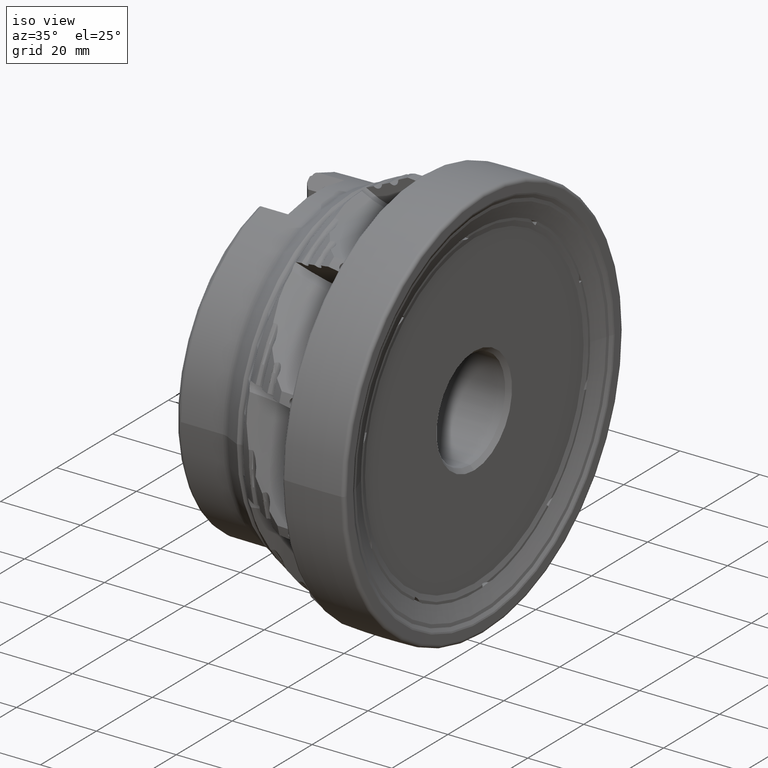
[diagram: clean part render]
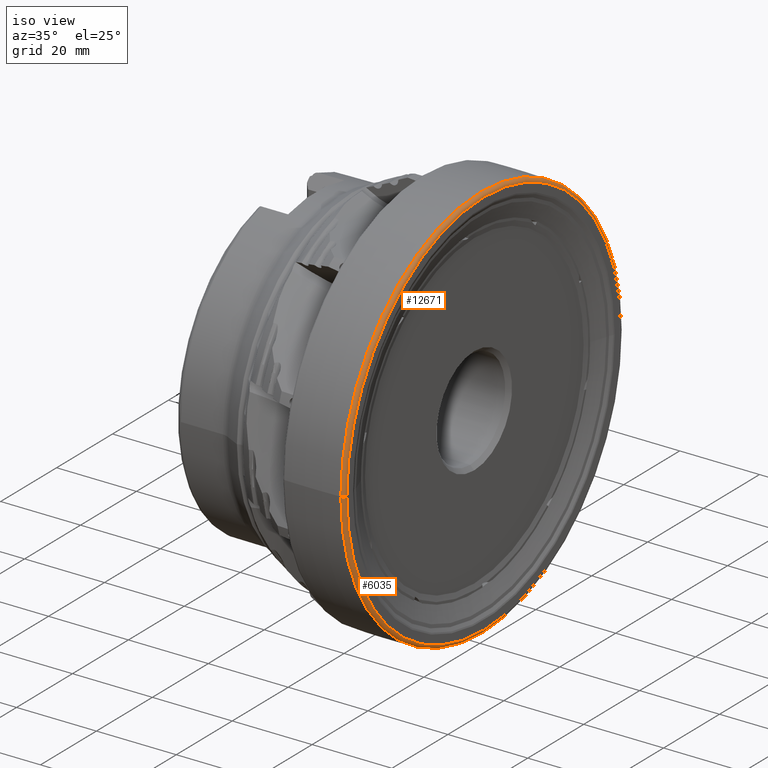
[diagram: same view with one multi-face feature highlighted, each face labeled with its STEP entity id]
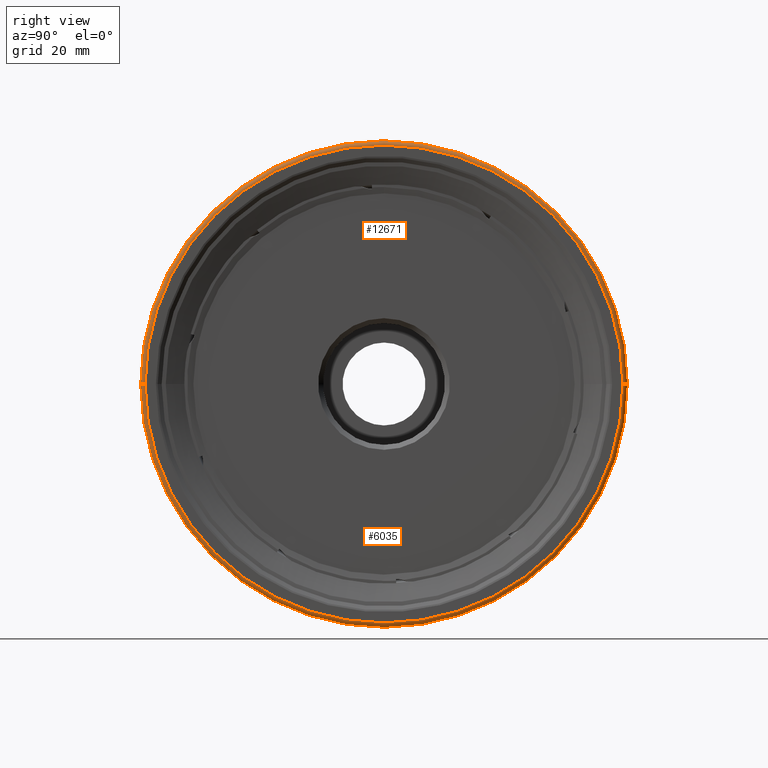
[diagram: same view with one multi-face feature highlighted, each face labeled with its STEP entity id]
A machine part, iso view. The highlighted faces form ONE feature: a constant-radius fillet chain: 2 tangent blend faces with common blend radius 0.8909 mm. The faces share edges in the B-rep.
A second angle (right view) of the same feature is appended — it is thin or edge-on in the first view.
Their STEP definitions:
[1] entity #12671 (Torus):
#258 = AXIS2_PLACEMENT_3D ( 'NONE', #14618, #13118, #14494 ) ;
#1268 = CARTESIAN_POINT ( 'NONE',  ( 0.9933903043369840535, -49.00069297747261743, 6.055139958572035568E-15 ) ) ;
#1479 = EDGE_CURVE ( 'NONE', #21164, #17506, #19569, .T. ) ;
#2734 = CARTESIAN_POINT ( 'NONE',  ( 0.1024565574637554960, -48.99640466227976532, 6.000329013938938301E-15 ) ) ;
#3558 = CIRCLE ( 'NONE', #22245, 0.8909440672482047407 ) ;
#4361 = CARTESIAN_POINT ( 'NONE',  ( 0.1159196488423344801, -49.88724700306476478, 0.0000000000000000000 ) ) ;
#4440 = VERTEX_POINT ( 'NONE', #4361 ) ;
#6356 = CIRCLE ( 'NONE', #258, 49.88724700306477189 ) ;
#6376 = DIRECTION ( 'NONE',  ( 1.000000000000000000, 3.061072263916563097E-16, -0.0000000000000000000 ) ) ;
#6531 = DIRECTION ( 'NONE',  ( 0.0000000000000000000, -1.000000000000000000, 1.224646799147352961E-16 ) ) ;
#6709 = CARTESIAN_POINT ( 'NONE',  ( 0.9933903043369540775, 49.00069297747263164, 0.0000000000000000000 ) ) ;
#7299 = FACE_OUTER_BOUND ( 'NONE', #7516, .T. ) ;
#7516 = EDGE_LOOP ( 'NONE', ( #10226, #13775, #15465, #20948 ) ) ;
#7776 = CARTESIAN_POINT ( 'NONE',  ( 0.1159196488423039212, 49.88724700306477899, 6.112102041641076499E-15 ) ) ;
#7896 = DIRECTION ( 'NONE',  ( -1.000000000000000000, 0.0000000000000000000, 0.0000000000000000000 ) ) ;
#8988 = EDGE_CURVE ( 'NONE', #17506, #9941, #13889, .T. ) ;
#9941 = VERTEX_POINT ( 'NONE', #1268 ) ;
#10226 = ORIENTED_EDGE ( 'NONE', *, *, #15289, .T. ) ;
#10780 = CARTESIAN_POINT ( 'NONE',  ( 0.9933903043369690655, 1.017032372040304568E-14, 0.0000000000000000000 ) ) ;
#11558 = DIRECTION ( 'NONE',  ( -3.053424160180453673E-16, 1.000000000000000000, 0.0000000000000000000 ) ) ;
#12456 = AXIS2_PLACEMENT_3D ( 'NONE', #10780, #6376, #11558 ) ;
#12513 = EDGE_CURVE ( 'NONE', #4440, #9941, #3558, .T. ) ;
#12618 = DIRECTION ( 'NONE',  ( -0.0000000000000000000, 0.0000000000000000000, -1.000000000000000000 ) ) ;
#12671 = ADVANCED_FACE ( 'NONE', ( #7299 ), #19354, .T. ) ;
#13118 = DIRECTION ( 'NONE',  ( 1.000000000000000000, 3.061072263916563097E-16, -0.0000000000000000000 ) ) ;
#13775 = ORIENTED_EDGE ( 'NONE', *, *, #12513, .T. ) ;
#13889 = CIRCLE ( 'NONE', #12456, 49.00069297747262453 ) ;
#14494 = DIRECTION ( 'NONE',  ( -3.061643811283316448E-16, 1.000000000000000000, 0.0000000000000000000 ) ) ;
#14544 = CARTESIAN_POINT ( 'NONE',  ( 0.1024565574637254922, 48.99640466227977953, 0.0000000000000000000 ) ) ;
#14618 = CARTESIAN_POINT ( 'NONE',  ( 0.1159196488423192006, 9.901723611809509297E-15, 0.0000000000000000000 ) ) ;
#15289 = EDGE_CURVE ( 'NONE', #21164, #4440, #6356, .T. ) ;
#15465 = ORIENTED_EDGE ( 'NONE', *, *, #8988, .F. ) ;
#16510 = CARTESIAN_POINT ( 'NONE',  ( 0.1024565574637404941, 6.938893903907228378E-15, 0.0000000000000000000 ) ) ;
#16532 = DIRECTION ( 'NONE',  ( -3.748732349964161091E-32, 1.224646799147353207E-16, 1.000000000000000000 ) ) ;
#17506 = VERTEX_POINT ( 'NONE', #6709 ) ;
#18229 = DIRECTION ( 'NONE',  ( -3.061072263916563097E-16, 1.000000000000000000, 0.0000000000000000000 ) ) ;
#18437 = DIRECTION ( 'NONE',  ( 1.000000000000000000, 3.061072263916563097E-16, -0.0000000000000000000 ) ) ;
#19354 = TOROIDAL_SURFACE ( 'NONE', #20468, 48.99640466227977242, 0.8909440672482055179 ) ;
#19569 = CIRCLE ( 'NONE', #20264, 0.8909440672482055179 ) ;
#20264 = AXIS2_PLACEMENT_3D ( 'NONE', #14544, #12618, #7896 ) ;
#20468 = AXIS2_PLACEMENT_3D ( 'NONE', #16510, #18437, #18229 ) ;
#20948 = ORIENTED_EDGE ( 'NONE', *, *, #1479, .F. ) ;
#21164 = VERTEX_POINT ( 'NONE', #7776 ) ;
#22245 = AXIS2_PLACEMENT_3D ( 'NONE', #2734, #16532, #6531 ) ;
[2] entity #6035 (Torus):
#647 = CARTESIAN_POINT ( 'NONE',  ( 0.1159196488423192006, 9.901723611809509297E-15, 0.0000000000000000000 ) ) ;
#998 = DIRECTION ( 'NONE',  ( 1.000000000000000000, 3.061072263916563097E-16, -0.0000000000000000000 ) ) ;
#1268 = CARTESIAN_POINT ( 'NONE',  ( 0.9933903043369840535, -49.00069297747261743, 6.055139958572035568E-15 ) ) ;
#1479 = EDGE_CURVE ( 'NONE', #21164, #17506, #19569, .T. ) ;
#1551 = CIRCLE ( 'NONE', #18448, 49.00069297747262453 ) ;
#2546 = TOROIDAL_SURFACE ( 'NONE', #11530, 48.99640466227977242, 0.8909440672482055179 ) ;
#2734 = CARTESIAN_POINT ( 'NONE',  ( 0.1024565574637554960, -48.99640466227976532, 6.000329013938938301E-15 ) ) ;
#2890 = CARTESIAN_POINT ( 'NONE',  ( 0.9933903043369690655, 1.017032372040304568E-14, 0.0000000000000000000 ) ) ;
#3558 = CIRCLE ( 'NONE', #22245, 0.8909440672482047407 ) ;
#3931 = ORIENTED_EDGE ( 'NONE', *, *, #20543, .F. ) ;
#4361 = CARTESIAN_POINT ( 'NONE',  ( 0.1159196488423344801, -49.88724700306476478, 0.0000000000000000000 ) ) ;
#4440 = VERTEX_POINT ( 'NONE', #4361 ) ;
#4580 = EDGE_CURVE ( 'NONE', #4440, #21164, #15386, .T. ) ;
#4617 = AXIS2_PLACEMENT_3D ( 'NONE', #647, #10537, #17730 ) ;
#4772 = DIRECTION ( 'NONE',  ( 1.000000000000000000, 3.061072263916563097E-16, -0.0000000000000000000 ) ) ;
#5144 = FACE_OUTER_BOUND ( 'NONE', #10878, .T. ) ;
#6035 = ADVANCED_FACE ( 'NONE', ( #5144 ), #2546, .T. ) ;
#6531 = DIRECTION ( 'NONE',  ( 0.0000000000000000000, -1.000000000000000000, 1.224646799147352961E-16 ) ) ;
#6709 = CARTESIAN_POINT ( 'NONE',  ( 0.9933903043369540775, 49.00069297747263164, 0.0000000000000000000 ) ) ;
#7776 = CARTESIAN_POINT ( 'NONE',  ( 0.1159196488423039212, 49.88724700306477899, 6.112102041641076499E-15 ) ) ;
#7896 = DIRECTION ( 'NONE',  ( -1.000000000000000000, 0.0000000000000000000, 0.0000000000000000000 ) ) ;
#9941 = VERTEX_POINT ( 'NONE', #1268 ) ;
#10537 = DIRECTION ( 'NONE',  ( 1.000000000000000000, 3.061072263916563097E-16, -0.0000000000000000000 ) ) ;
#10878 = EDGE_LOOP ( 'NONE', ( #15085, #21916, #11225, #3931 ) ) ;
#11225 = ORIENTED_EDGE ( 'NONE', *, *, #1479, .T. ) ;
#11530 = AXIS2_PLACEMENT_3D ( 'NONE', #16379, #998, #14255 ) ;
#12513 = EDGE_CURVE ( 'NONE', #4440, #9941, #3558, .T. ) ;
#12618 = DIRECTION ( 'NONE',  ( -0.0000000000000000000, 0.0000000000000000000, -1.000000000000000000 ) ) ;
#14255 = DIRECTION ( 'NONE',  ( -3.061072263916563097E-16, 1.000000000000000000, 0.0000000000000000000 ) ) ;
#14544 = CARTESIAN_POINT ( 'NONE',  ( 0.1024565574637254922, 48.99640466227977953, 0.0000000000000000000 ) ) ;
#15085 = ORIENTED_EDGE ( 'NONE', *, *, #12513, .F. ) ;
#15386 = CIRCLE ( 'NONE', #4617, 49.88724700306477189 ) ;
#16379 = CARTESIAN_POINT ( 'NONE',  ( 0.1024565574637404941, 6.938893903907228378E-15, 0.0000000000000000000 ) ) ;
#16482 = DIRECTION ( 'NONE',  ( -3.053424160180453673E-16, 1.000000000000000000, 0.0000000000000000000 ) ) ;
#16532 = DIRECTION ( 'NONE',  ( -3.748732349964161091E-32, 1.224646799147353207E-16, 1.000000000000000000 ) ) ;
#17506 = VERTEX_POINT ( 'NONE', #6709 ) ;
#17730 = DIRECTION ( 'NONE',  ( -3.061643811283316448E-16, 1.000000000000000000, 0.0000000000000000000 ) ) ;
#18448 = AXIS2_PLACEMENT_3D ( 'NONE', #2890, #4772, #16482 ) ;
#19569 = CIRCLE ( 'NONE', #20264, 0.8909440672482055179 ) ;
#20264 = AXIS2_PLACEMENT_3D ( 'NONE', #14544, #12618, #7896 ) ;
#20543 = EDGE_CURVE ( 'NONE', #9941, #17506, #1551, .T. ) ;
#21164 = VERTEX_POINT ( 'NONE', #7776 ) ;
#21916 = ORIENTED_EDGE ( 'NONE', *, *, #4580, .T. ) ;
#22245 = AXIS2_PLACEMENT_3D ( 'NONE', #2734, #16532, #6531 ) ;